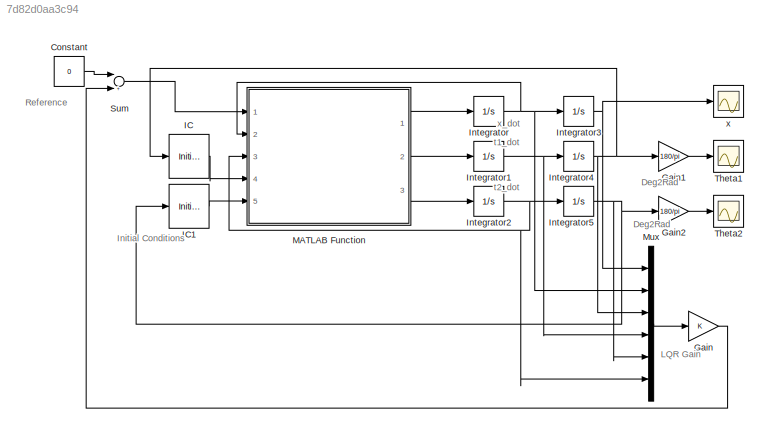
MODEL slx_7d82d0aa3c94
KIND model
CONFIG AbsTol = auto
CONFIG EnableMultiTasking = off
CONFIG FixedStep = auto
CONFIG MaxStep = auto
CONFIG MinStep = auto
CONFIG RelTol = 1e-3
CONFIG SampleTimeConstraint = Unconstrained
CONFIG Solver = VariableStepAuto
CONFIG SolverName = VariableStepAuto
CONFIG StartTime = 0.0
CONFIG StopTime = 100.0
BLOCK [Constant] Constant
  Value = 0
BLOCK [Gain] Gain
  Gain = K
  Multiplication = Matrix(K*u)
  OutDataTypeStr = Inherit: Inherit via internal rule
  ParamDataTypeStr = Inherit: Inherit via internal rule
  SaturateOnIntegerOverflow = off
BLOCK [Gain] Gain1
  Gain = 180/pi
  OutDataTypeStr = Inherit: Inherit via internal rule
  ParamDataTypeStr = Inherit: Inherit via internal rule
  SaturateOnIntegerOverflow = off
BLOCK [Gain] Gain2
  Gain = 180/pi
  OutDataTypeStr = Inherit: Inherit via internal rule
  ParamDataTypeStr = Inherit: Inherit via internal rule
  SaturateOnIntegerOverflow = off
BLOCK [InitialCondition] IC
  Value = pi/10
BLOCK [InitialCondition] IC1
  Value = pi/20
BLOCK [Integrator] Integrator
  Ports = [1, 1]
BLOCK [Integrator] Integrator1
  Ports = [1, 1]
BLOCK [Integrator] Integrator2
  Ports = [1, 1]
BLOCK [Integrator] Integrator3
  Ports = [1, 1]
BLOCK [Integrator] Integrator4
  Ports = [1, 1]
BLOCK [Integrator] Integrator5
  Ports = [1, 1]
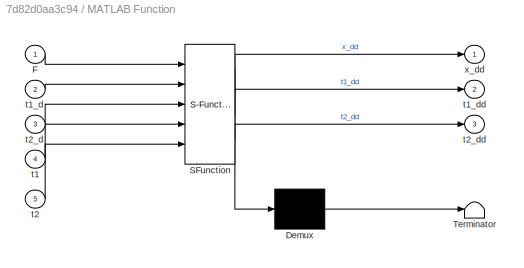
BLOCK [SubSystem] MATLAB Function
  ErrorFcn = Stateflow.Translate.translate
  PermitHierarchicalResolution = ExplicitOnly
  Ports = [5, 3]
  RequestExecContextInheritance = off
  SFBlockType = MATLAB Function
  TreatAsAtomicUnit = on
BLOCK [Demux] MATLAB Function/ Demux 
  Outputs = 1
  Ports = [1, 1]
BLOCK [S-Function] MATLAB Function/ SFunction 
  EnableBusSupport = on
  FunctionName = sf_sfun
  PortCounts = [5 4]
  Ports = [5, 4]
  SFcnIsStateOwnerBlock = off
  SFunctionDeploymentMode = off
  Tag = Stateflow S-Function 2
BLOCK [Terminator] MATLAB Function/ Terminator 
BLOCK [Inport] MATLAB Function/F
  IconDisplay = Port number
BLOCK [Inport] MATLAB Function/t1
  IconDisplay = Port number
  Port = 4
BLOCK [Inport] MATLAB Function/t1_d
  IconDisplay = Port number
  Port = 2
BLOCK [Outport] MATLAB Function/t1_dd
  IconDisplay = Port number
  Port = 2
  VectorParamsAs1DForOutWhenUnconnected = off
BLOCK [Inport] MATLAB Function/t2
  IconDisplay = Port number
  Port = 5
BLOCK [Inport] MATLAB Function/t2_d
  IconDisplay = Port number
  Port = 3
BLOCK [Outport] MATLAB Function/t2_dd
  IconDisplay = Port number
  Port = 3
  VectorParamsAs1DForOutWhenUnconnected = off
BLOCK [Outport] MATLAB Function/x_dd
  IconDisplay = Port number
  VectorParamsAs1DForOutWhenUnconnected = off
BLOCK [Mux] Mux
  DisplayOption = bar
  Inputs = 6
  Ports = [6, 1]
BLOCK [Sum] Sum
  InputSameDT = off
  Inputs = |+-
  OutDataTypeStr = Inherit: Inherit via internal rule
  Ports = [2, 1]
  SaturateOnIntegerOverflow = off
BLOCK [Scope] Theta1
  Floating = off
  NumInputPorts = 1
  Ports = [1]
  ScopeSpecificationString = Simulink.scopes.TimeScopeBlockCfg('CurrentConfiguration', extmgr.ConfigurationSet(extmgr.Configuration('Core','General UI',true),extmgr.Configuration('Core','Source UI',true),extmgr.Configuration('Sources','WiredSimulink',true,'DataLoggingVariableName','ScopeData1'),extmgr.Configuration('Visuals','Time Domain',true,'SerializedDisplays',{struct('MinYLimReal','-0.00056','MaxYLimReal','0.00049','YLab...<+1391ch>
BLOCK [Scope] Theta2
  Floating = off
  NumInputPorts = 1
  Ports = [1]
  ScopeSpecificationString = Simulink.scopes.TimeScopeBlockCfg('CurrentConfiguration', extmgr.ConfigurationSet(extmgr.Configuration('Core','General UI',true),extmgr.Configuration('Core','Source UI',true),extmgr.Configuration('Sources','WiredSimulink',true,'DataLoggingVariableName','ScopeData2'),extmgr.Configuration('Visuals','Time Domain',true,'SerializedDisplays',{struct('MinYLimReal','-0.00039','MaxYLimReal','0.00028','YLab...<+1386ch>
BLOCK [Scope] x
  Floating = off
  NumInputPorts = 1
  Ports = [1]
  ScopeSpecificationString = Simulink.scopes.TimeScopeBlockCfg('CurrentConfiguration', extmgr.ConfigurationSet(extmgr.Configuration('Core','General UI',true),extmgr.Configuration('Core','Source UI',true),extmgr.Configuration('Sources','WiredSimulink',true),extmgr.Configuration('Visuals','Time Domain',true,'SerializedDisplays',{struct('MinYLimReal','-0.00002','MaxYLimReal','0.000036','YLabelReal','','MinYLimMag','0.000000','Ma...<+1383ch>
ANNOTATION (root): Deg2Rad
ANNOTATION (root): Initial Conditions
ANNOTATION (root): LQR Gain
ANNOTATION (root): Reference
ANNOTATION (root): t1_dot
ANNOTATION (root): t2_dot
ANNOTATION (root): x_dot
LINE Constant:1 -> Sum:1
LINE Gain1:1 -> Theta1:1
LINE Gain2:1 -> Theta2:1
LINE Gain:1 -> Sum:2
LINE IC1:1 -> MATLAB Function:5
LINE IC:1 -> MATLAB Function:4
NET Integrator1:1 -> Integrator4:1, Mux:4
NET Integrator2:1 -> Integrator5:1, MATLAB Function:3, Mux:6
NET Integrator3:1 -> Mux:1, x:1
NET Integrator4:1 -> Gain1:1, IC:1, Mux:3
NET Integrator5:1 -> Gain2:1, IC1:1, Mux:5
NET Integrator:1 -> Integrator3:1, MATLAB Function:2, Mux:2
LINE MATLAB Function:1 -> Integrator:1
LINE MATLAB Function:2 -> Integrator1:1
LINE MATLAB Function:3 -> Integrator2:1
LINE Mux:1 -> Gain:1
LINE Sum:1 -> MATLAB Function:1
note: NET lines group one-source signal fan-out (src -> all destinations, sorted); 1:1 wires keep LINE
CHART MATLAB Function states=1 transitions=1
  STATE_LABEL 'eML_blk_kernel()'
  STATE_LABEL 'SCRIPT:\nfunction [x_dd,t1_dd,t2_dd] = NonLinear_Estimation(F,t1_d,t2_d,t1,t2)\n\n%% System Parameters\nl1 = 20;\nl2 = 10;\nm1 = 100;\nm2 = 100;\nM = 1000;\ng=9.8;\n\n%% Variables\nc1 = cos(t1);\nc2 = cos(t2);\ns1 = sin(t1);\ns2 = sin(t2);\n\n%% x_dd\nx_dd = (F- (m1*l1*(t1_d^2)*(s1)) - (m2*l2*(t2_d^2)*(s2)) - m1*c1*s1*g - m2*c2*s2*g)/(M + m1*(s1^2) + m2*(s2^2));\n\n%% t1_dd\nt1_dd = (x_dd*c1 - g*s1)/l1;\n\n%% t2_dd\nt2_d...<+29ch>'
